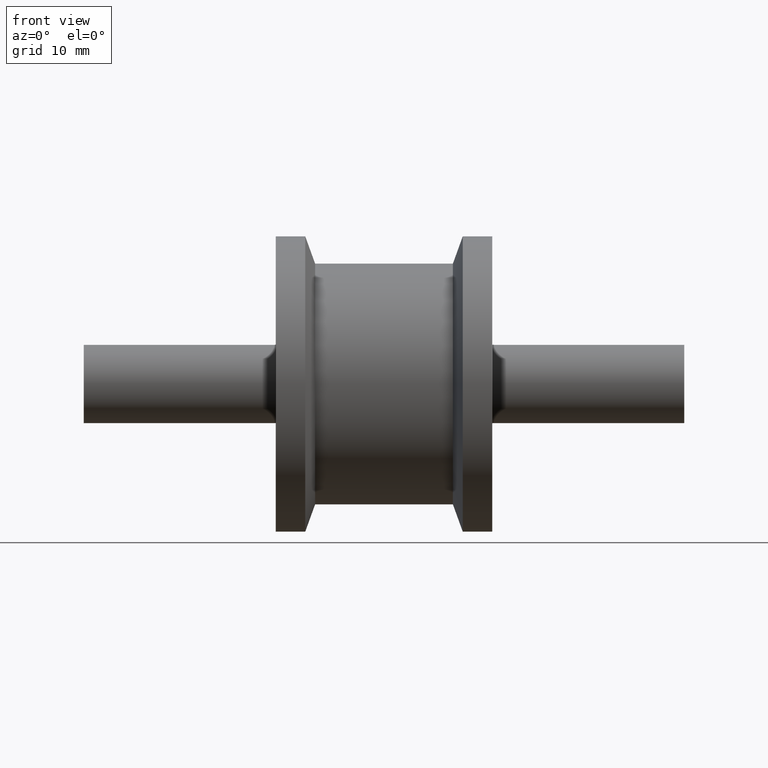
[diagram: clean part render]
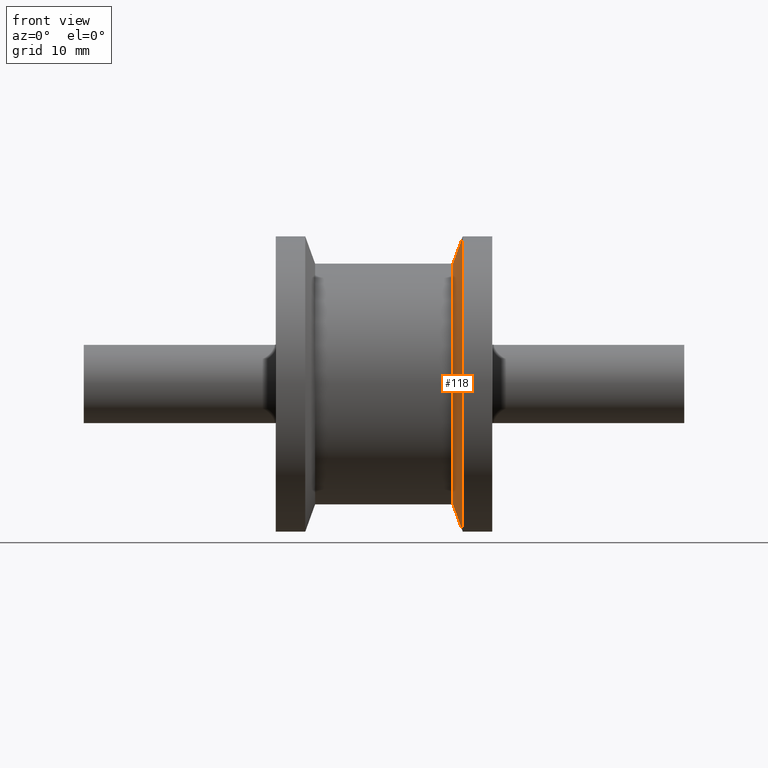
[diagram: same view with one face highlighted and labeled with its STEP entity id]
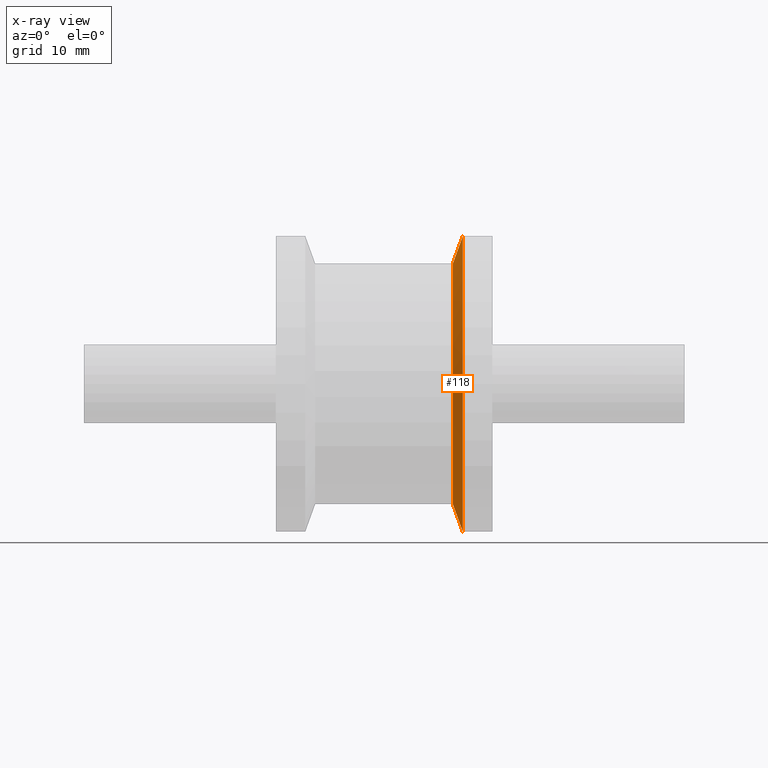
[diagram: x-ray of the same camera — body ghosted, the highlighted face saturated]
A machine part, front view. The second image highlights one B-rep face of the part: STEP entity #118.
The next image is the same camera in x-ray: the body ghosted, the highlighted face saturated — about 0% of this face is hidden behind the body in this view.
In plain terms, the highlighted conical surface has half-angle 70.017 deg.
Its self-contained STEP definition (entity closure, byte-faithful):
#15=CONICAL_SURFACE('',#134,13.625,70.0168934780999);
#24=FACE_BOUND('',#47,.T.);
#33=FACE_OUTER_BOUND('',#46,.T.);
#46=EDGE_LOOP('',(#96));
#47=EDGE_LOOP('',(#97));
#64=CIRCLE('',#133,15.);
#65=CIRCLE('',#135,12.25);
#74=VERTEX_POINT('',#201);
#75=VERTEX_POINT('',#204);
#84=EDGE_CURVE('',#74,#74,#64,.T.);
#85=EDGE_CURVE('',#75,#75,#65,.T.);
#96=ORIENTED_EDGE('',*,*,#84,.F.);
#97=ORIENTED_EDGE('',*,*,#85,.T.);
#118=ADVANCED_FACE('',(#33,#24),#15,.T.);
#133=AXIS2_PLACEMENT_3D('',#202,#160,#161);
#134=AXIS2_PLACEMENT_3D('',#203,#162,#163);
#135=AXIS2_PLACEMENT_3D('',#205,#164,#165);
#160=DIRECTION('center_axis',(1.,-1.78130443512342E-16,0.));
#161=DIRECTION('ref_axis',(0.,0.,-1.));
#162=DIRECTION('center_axis',(1.,-1.78130443512342E-16,0.));
#163=DIRECTION('ref_axis',(1.78130443512342E-16,1.,0.));
#164=DIRECTION('center_axis',(1.,-1.78130443512342E-16,0.));
#165=DIRECTION('ref_axis',(0.,0.,-1.));
#201=CARTESIAN_POINT('',(8.00000000000001,15.,0.));
#202=CARTESIAN_POINT('Origin',(8.00000000000001,-1.42504354809874E-15,0.));
#203=CARTESIAN_POINT('Origin',(7.50000000000001,-1.33597832634257E-15,0.));
#204=CARTESIAN_POINT('',(7.00000000000001,12.25,0.));
#205=CARTESIAN_POINT('Origin',(7.00000000000001,-1.2469131045864E-15,0.));